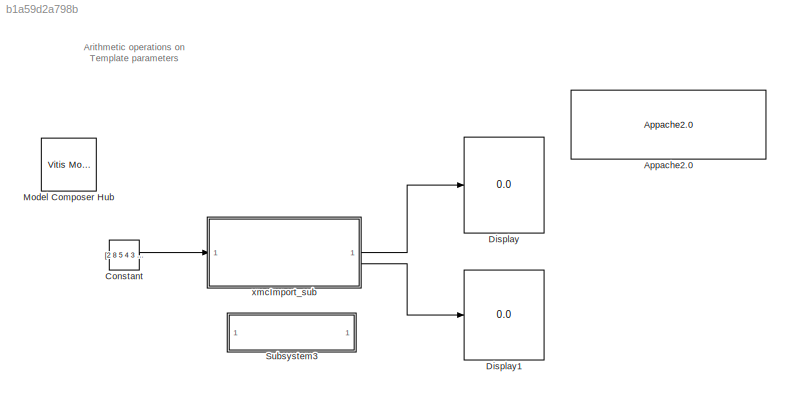
MODEL slx_b1a59d2a798b
KIND model
CONFIG AbsTol = auto
CONFIG EnableMultiTasking = on
CONFIG FixedStep = auto
CONFIG MaxStep = auto
CONFIG MinStep = auto
CONFIG RelTol = 1e-3
CONFIG SampleTimeConstraint = Unconstrained
CONFIG SolverName = VariableStepAuto
CONFIG StartTime = 0.0
CONFIG StopTime = 10.0
BLOCK [Reference] Appache2.0  REF=vmcUtilities/Appache2.0
  SourceBlock = vmcUtilities/Appache2.0
  SourceType = DocBlock
  UserDataPersistent = on
BLOCK [Constant] Constant
  OutDataTypeStr = int16
  SampleTime = 1
  Value = [2 8 5 4 3 12 4 8 7 2]
BLOCK [Display] Display
  Decimation = 1
BLOCK [Display] Display1
  Decimation = 1
BLOCK [Reference] Model Composer Hub  REF=vmcUtilities/Vitis Model Composer Hub
  SourceBlock = vmcUtilities/Vitis Model Composer Hub
  SourceType = VMC Hub
  Tag = genX
  UserDataPersistent = on
BLOCK [SubSystem] Subsystem3
  OpenFcn = xmcOpenFileEx
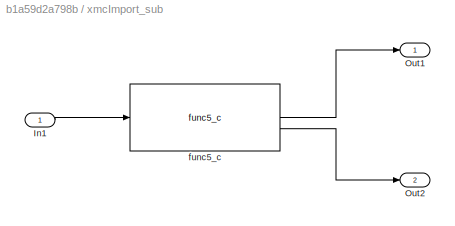
BLOCK [SubSystem] xmcImport_sub
BLOCK [Inport] xmcImport_sub/In1
BLOCK [Outport] xmcImport_sub/Out1
BLOCK [Outport] xmcImport_sub/Out2
  Port = 2
BLOCK [Reference] xmcImport_sub/func5_c  REF=templatized_input_5_lib/func5_c
  SourceBlock = templatized_input_5_lib/func5_c
  SourceType = Import Function
ANNOTATION (root): Arithmetic operations on Template parameters
LINE Constant:1 -> xmcImport_sub:1
LINE xmcImport_sub/In1:1 -> xmcImport_sub/func5_c:1
LINE xmcImport_sub/func5_c:1 -> xmcImport_sub/Out1:1
LINE xmcImport_sub/func5_c:2 -> xmcImport_sub/Out2:1
LINE xmcImport_sub:1 -> Display:1
LINE xmcImport_sub:2 -> Display1:1
